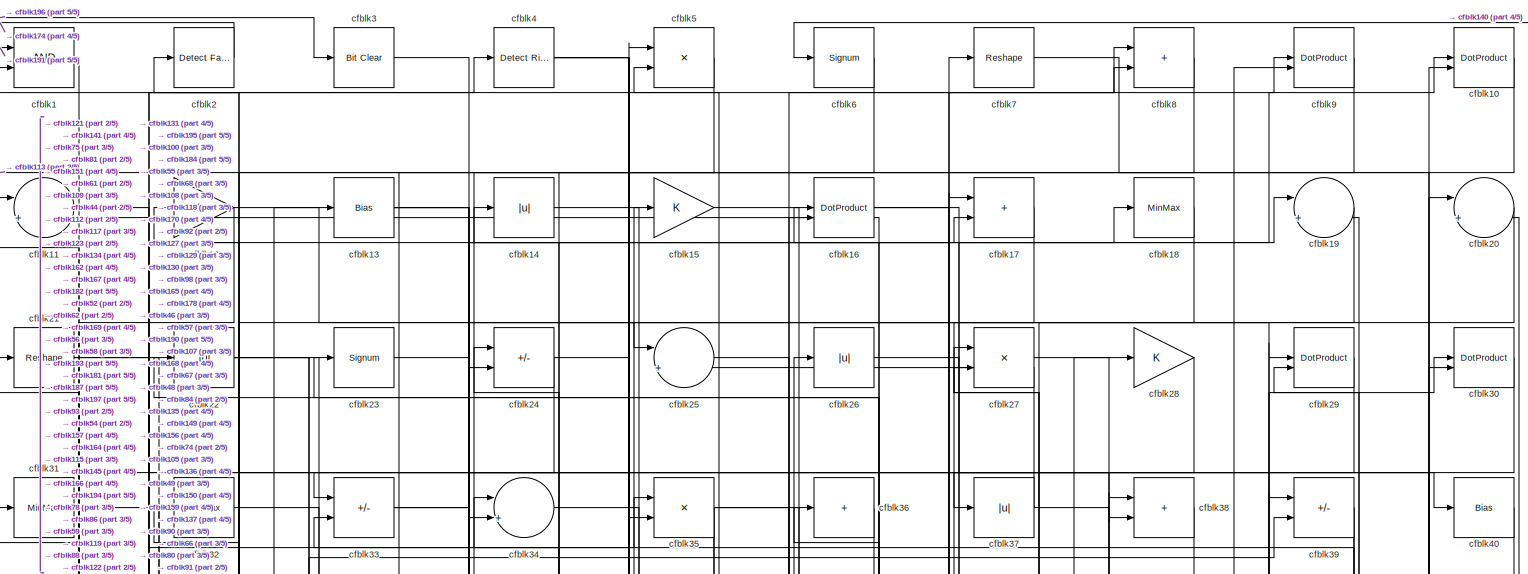
[diagram: root canvas - part 1/5, full width, top band]
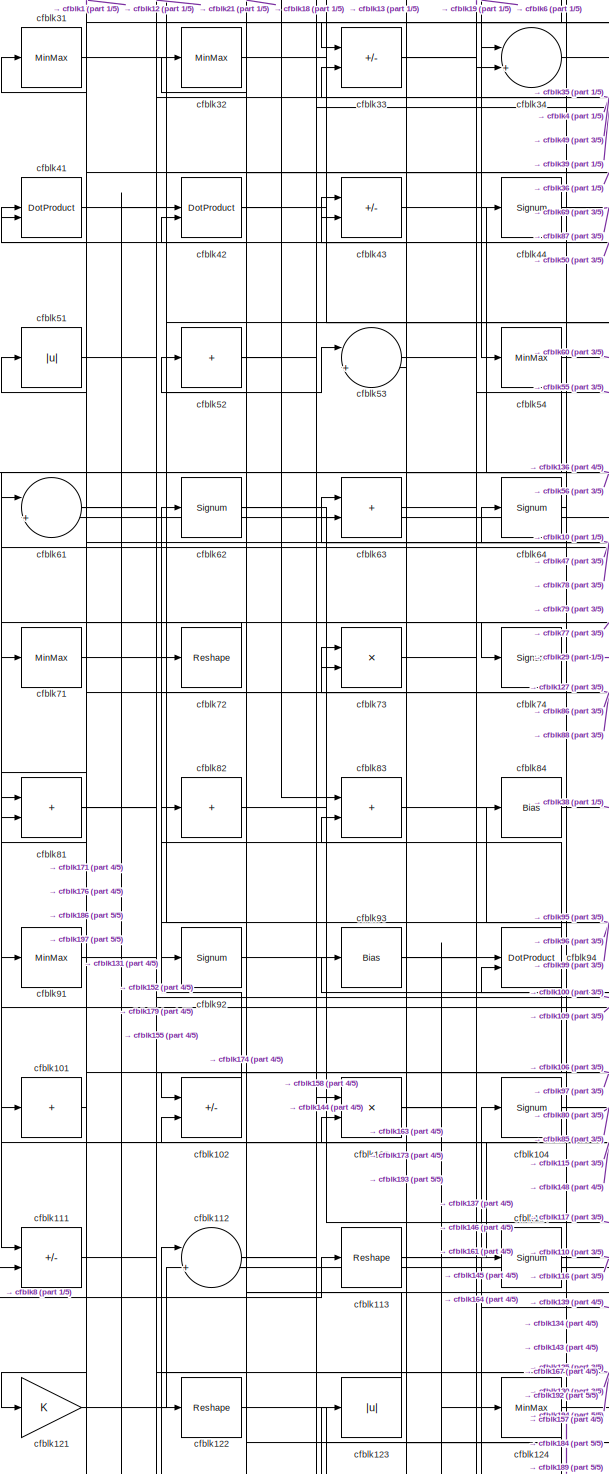
[diagram: root canvas - part 2/5, middle left region]
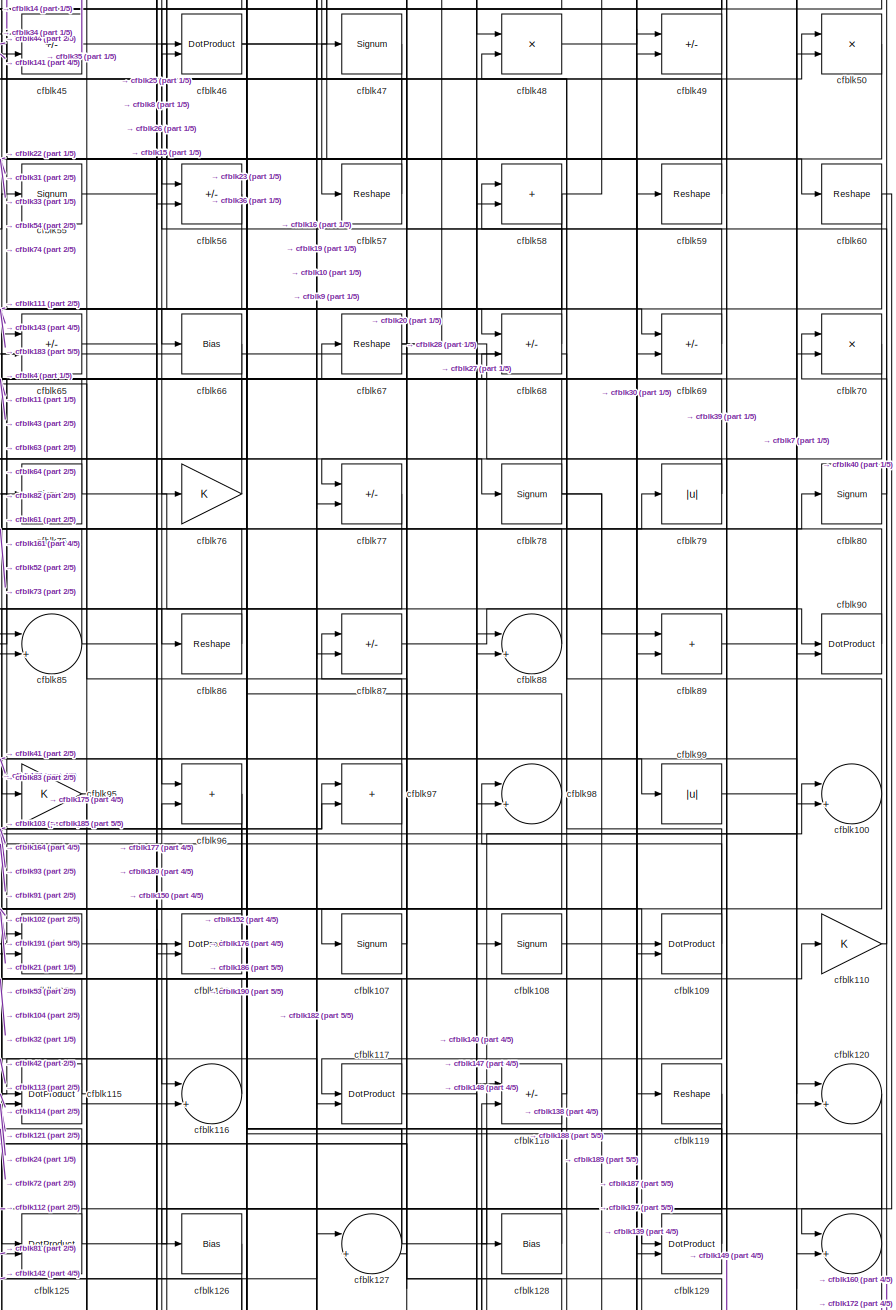
[diagram: root canvas - part 3/5, middle right region]
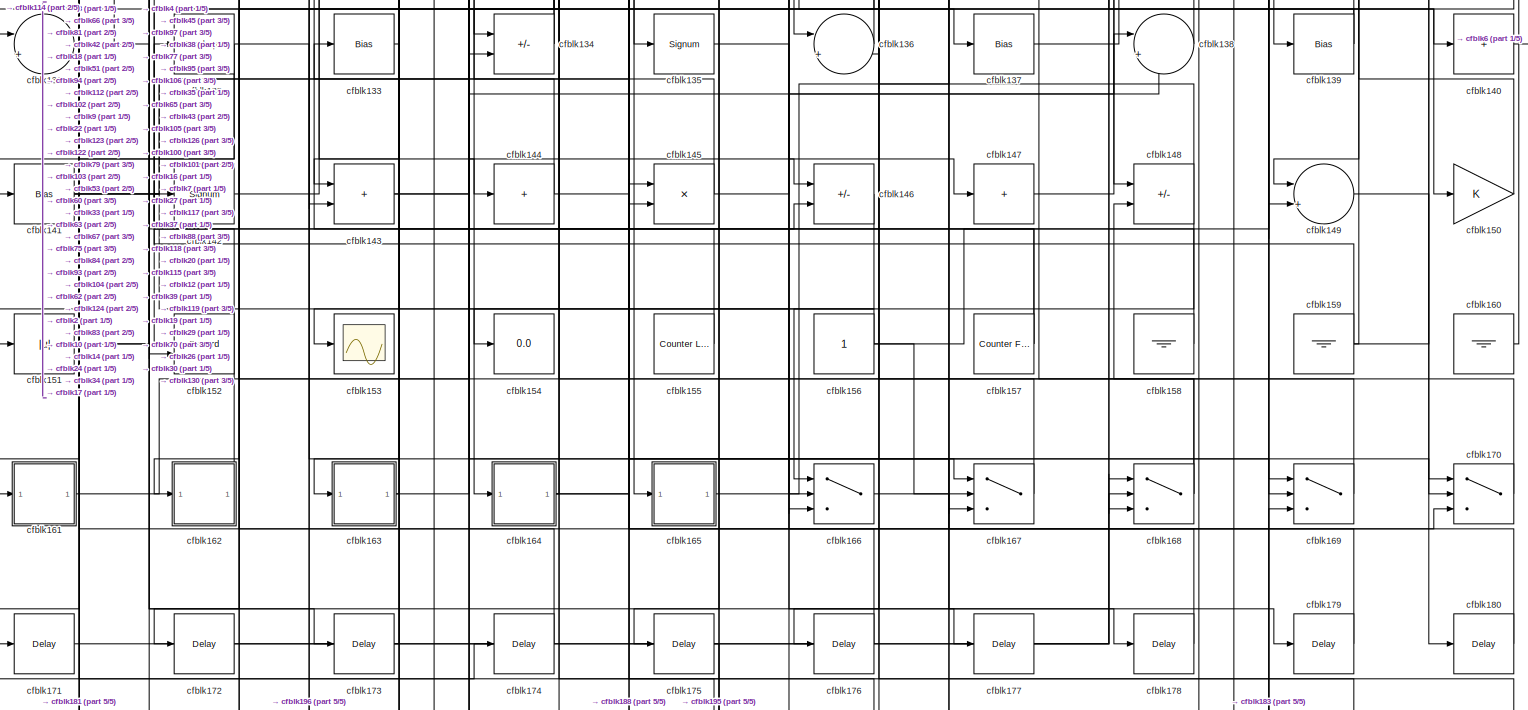
[diagram: root canvas - part 4/5, full width, bottom band]
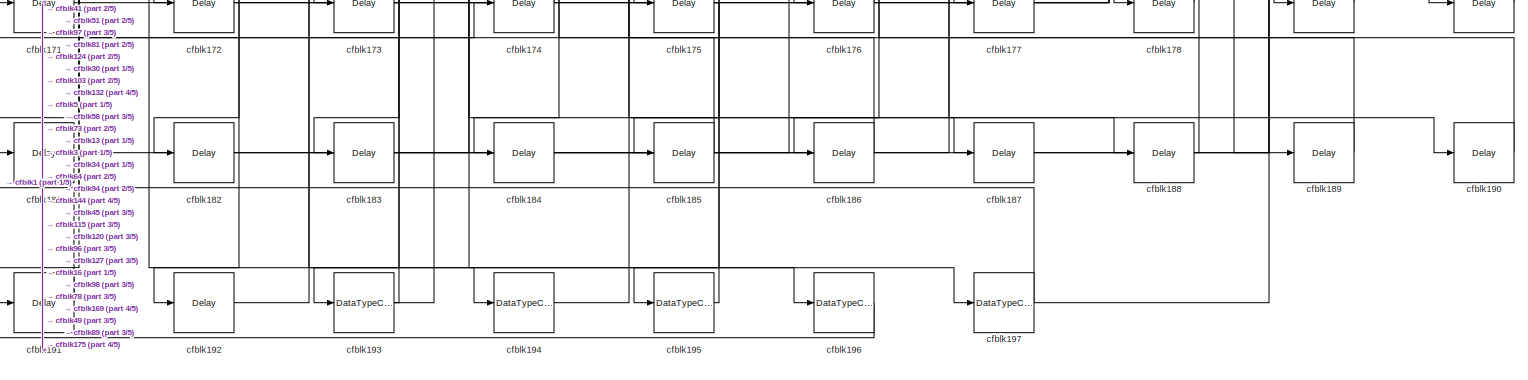
[diagram: root canvas - part 5/5, full width, bottom band]
MODEL slx_6b3263de21a6
KIND model
CONFIG AbsTol = auto
CONFIG EnableMultiTasking = off
CONFIG FixedStep = auto
CONFIG MaxStep = auto
CONFIG MinStep = auto
CONFIG RelTol = 1e-3
CONFIG SampleTimeConstraint = Unconstrained
CONFIG SolverName = VariableStepAuto
CONFIG StartTime = 0.0
CONFIG StopTime = 10.0
BLOCK [Logic] cfblk1
  AllPortsSameDT = off
  OutDataTypeStr = boolean
BLOCK [DotProduct] cfblk10
  OutDataTypeStr = Inherit: Inherit via internal rule
BLOCK [Sum] cfblk100
  Inputs = |++
BLOCK [Sum] cfblk101
  IconShape = rectangular
  Inputs = +
BLOCK [Sum] cfblk102
  IconShape = rectangular
  Inputs = +-
BLOCK [Product] cfblk103
  Inputs = */
  RndMeth = Zero
  SaturateOnIntegerOverflow = on
BLOCK [Signum] cfblk104
BLOCK [Sum] cfblk105
  IconShape = rectangular
  Inputs = +-
BLOCK [DotProduct] cfblk106
  OutDataTypeStr = Inherit: Inherit via internal rule
BLOCK [Signum] cfblk107
BLOCK [Signum] cfblk108
BLOCK [DotProduct] cfblk109
  OutDataTypeStr = Inherit: Inherit via internal rule
BLOCK [Sum] cfblk11
  Inputs = |++
BLOCK [Gain] cfblk110
BLOCK [Sum] cfblk111
  IconShape = rectangular
  Inputs = +-
BLOCK [Sum] cfblk112
  Inputs = |++
BLOCK [Reshape] cfblk113
BLOCK [Signum] cfblk114
BLOCK [DotProduct] cfblk115
  OutDataTypeStr = Inherit: Inherit via internal rule
BLOCK [Sum] cfblk116
  Inputs = |++
BLOCK [DotProduct] cfblk117
  OutDataTypeStr = Inherit: Inherit via internal rule
BLOCK [Sum] cfblk118
  IconShape = rectangular
  Inputs = +-
BLOCK [Reshape] cfblk119
BLOCK [Gain] cfblk12
BLOCK [Sum] cfblk120
  Inputs = |++
BLOCK [Gain] cfblk121
BLOCK [Reshape] cfblk122
BLOCK [Abs] cfblk123
  SaturateOnIntegerOverflow = off
BLOCK [MinMax] cfblk124
BLOCK [DotProduct] cfblk125
  OutDataTypeStr = Inherit: Inherit via internal rule
BLOCK [Bias] cfblk126
  Bias = 0.0
  SaturateOnIntegerOverflow = off
BLOCK [Sum] cfblk127
  Inputs = |++
BLOCK [Bias] cfblk128
  Bias = 0.0
  SaturateOnIntegerOverflow = off
BLOCK [DotProduct] cfblk129
  OutDataTypeStr = Inherit: Inherit via internal rule
BLOCK [Bias] cfblk13
  Bias = 0.0
  SaturateOnIntegerOverflow = off
BLOCK [Sum] cfblk130
  Inputs = |++
BLOCK [Sum] cfblk131
  Inputs = |++
BLOCK [Reshape] cfblk132
BLOCK [Bias] cfblk133
  Bias = 0.0
  SaturateOnIntegerOverflow = off
BLOCK [Sum] cfblk134
  IconShape = rectangular
  Inputs = +-
BLOCK [Signum] cfblk135
BLOCK [Sum] cfblk136
  Inputs = |++
BLOCK [Bias] cfblk137
  Bias = 0.0
  SaturateOnIntegerOverflow = off
BLOCK [Sum] cfblk138
  Inputs = |++
BLOCK [Bias] cfblk139
  Bias = 0.0
  SaturateOnIntegerOverflow = off
BLOCK [Abs] cfblk14
  SaturateOnIntegerOverflow = off
BLOCK [Sum] cfblk140
  IconShape = rectangular
  Inputs = +
BLOCK [Bias] cfblk141
  Bias = 0.0
  SaturateOnIntegerOverflow = off
BLOCK [Signum] cfblk142
BLOCK [Sum] cfblk143
  IconShape = rectangular
BLOCK [Sum] cfblk144
  IconShape = rectangular
  Inputs = +
BLOCK [Product] cfblk145
  Inputs = */
  RndMeth = Zero
  SaturateOnIntegerOverflow = on
BLOCK [Sum] cfblk146
  IconShape = rectangular
  Inputs = +-
BLOCK [Sum] cfblk147
  IconShape = rectangular
  Inputs = +
BLOCK [Sum] cfblk148
  IconShape = rectangular
  Inputs = +-
BLOCK [Sum] cfblk149
  Inputs = |++
BLOCK [Gain] cfblk15
BLOCK [Gain] cfblk150
BLOCK [Abs] cfblk151
  SaturateOnIntegerOverflow = off
BLOCK [Record] cfblk152
  CompatibilityTag = XY
  FileSettingsInternal = {"entries":[{"content":{"excelSettings":{"content":{},"type":"Streamout.ExcelSettings"}},"type":"Streamout.FileSettingStorage","uuid":""}],"packageUris":["http:\/\/schema.mathworks.com\/mf0\/streamout_blocks\/R2020a"],"version":"1.0"}
  Layout = [1 1]
  SignalsInternal = {"entries":[{"content":{"signals":[{"content":{"blockPath":[],"dimensions":[1],"domain":"","lineColor":"#a2142f","plots":[1],"port":1,"sid":[""],"signalID":3784,"signalName":"cfblk126"},"type":"RecordBlkView.Signal","uuid":""},{"content":{"blockPath":[],"dimensions":[1],"domain":"","lineColor":"#139fff","plots":[1],"port":2,"sid":[""],"signalID":3788,"signalName":"cfblk94"},"type":"RecordBlkView.S...<+163ch>
  VisualizationBindings = {"xyplotplugin":{"info":[{"series":[{"bindingParametersList":[{"parameter":"X-Axis","signalID":3784,"signalName":"cfblk126"},{"parameter":"Y-Axis","signalID":3788,"signalName":"cfblk94"}],"seriesID":60318}],"subplotID":1}]}}
  st = -1
BLOCK [Scope] cfblk153
  Floating = off
  NumInputPorts = 1
  ScopeSpecificationString = Simulink.scopes.TimeScopeBlockCfg('CurrentConfiguration', extmgr.ConfigurationSet(extmgr.Configuration('Core','General UI',true),extmgr.Configuration('Core','Source UI',true),extmgr.Configuration('Sources','WiredSimulink',true,'DataLoggingVariableName','ScopeData2','DataLoggingSaveFormat','Array','DataLoggingLimitDataPoints',true,'DataLoggingDecimation','1'),extmgr.Configuration('Visuals','Time Do...<+868ch>
BLOCK [Display] cfblk154
  Decimation = 1
BLOCK [Reference] cfblk155  REF=hdlsllib/Sources/Counter
Limited
  SourceBlock = hdlsllib/Sources/Counter\nLimited
  SourceType = Counter Limited
BLOCK [Constant] cfblk156
  SampleTime = -1
BLOCK [Reference] cfblk157  REF=hdlsllib/Sources/Counter
Free-Running
  SourceBlock = hdlsllib/Sources/Counter\nFree-Running
  SourceType = Counter Free-Running
BLOCK [Ground] cfblk158
BLOCK [Ground] cfblk159
BLOCK [DotProduct] cfblk16
  OutDataTypeStr = Inherit: Inherit via internal rule
BLOCK [Ground] cfblk160
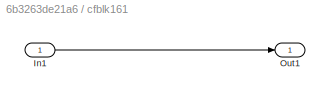
BLOCK [SubSystem] cfblk161
  LibrarySourceBlock = hdlsllib/Ports &\nSubsystems/Subsystem
BLOCK [Inport] cfblk161/In1
BLOCK [Outport] cfblk161/Out1
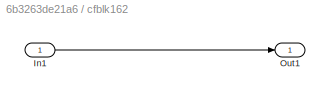
BLOCK [SubSystem] cfblk162
  LibrarySourceBlock = hdlsllib/Ports &\nSubsystems/Subsystem
BLOCK [Inport] cfblk162/In1
BLOCK [Outport] cfblk162/Out1
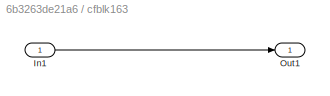
BLOCK [SubSystem] cfblk163
  LibrarySourceBlock = hdlsllib/Ports &\nSubsystems/Subsystem
BLOCK [Inport] cfblk163/In1
BLOCK [Outport] cfblk163/Out1
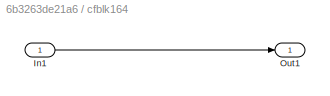
BLOCK [SubSystem] cfblk164
  LibrarySourceBlock = hdlsllib/Ports &\nSubsystems/Subsystem
BLOCK [Inport] cfblk164/In1
BLOCK [Outport] cfblk164/Out1
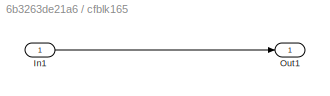
BLOCK [SubSystem] cfblk165
  LibrarySourceBlock = hdlsllib/Ports &\nSubsystems/Subsystem
BLOCK [Inport] cfblk165/In1
BLOCK [Outport] cfblk165/Out1
BLOCK [Switch] cfblk166
  InputSameDT = off
  SaturateOnIntegerOverflow = off
BLOCK [Switch] cfblk167
  InputSameDT = off
  SaturateOnIntegerOverflow = off
BLOCK [Switch] cfblk168
  InputSameDT = off
  SaturateOnIntegerOverflow = off
BLOCK [Switch] cfblk169
  InputSameDT = off
  SaturateOnIntegerOverflow = off
BLOCK [Sum] cfblk17
  IconShape = rectangular
BLOCK [Switch] cfblk170
  InputSameDT = off
  SaturateOnIntegerOverflow = off
BLOCK [Delay] cfblk171
  InputPortMap = u0
  SampleTime = 1
BLOCK [Delay] cfblk172
  InputPortMap = u0
  SampleTime = 1
BLOCK [Delay] cfblk173
  InputPortMap = u0
  SampleTime = 1
BLOCK [Delay] cfblk174
  InputPortMap = u0
  SampleTime = 1
BLOCK [Delay] cfblk175
  InputPortMap = u0
  SampleTime = 1
BLOCK [Delay] cfblk176
  InputPortMap = u0
  SampleTime = 1
BLOCK [Delay] cfblk177
  InputPortMap = u0
  SampleTime = 1
BLOCK [Delay] cfblk178
  InputPortMap = u0
  SampleTime = 1
BLOCK [Delay] cfblk179
  InputPortMap = u0
  SampleTime = 1
BLOCK [MinMax] cfblk18
BLOCK [Delay] cfblk180
  InputPortMap = u0
  SampleTime = 1
BLOCK [Delay] cfblk181
  InputPortMap = u0
  SampleTime = 1
BLOCK [Delay] cfblk182
  InputPortMap = u0
  SampleTime = 1
BLOCK [Delay] cfblk183
  InputPortMap = u0
  SampleTime = 1
BLOCK [Delay] cfblk184
  InputPortMap = u0
  SampleTime = 1
BLOCK [Delay] cfblk185
  InputPortMap = u0
  SampleTime = 1
BLOCK [Delay] cfblk186
  InputPortMap = u0
  SampleTime = 1
BLOCK [Delay] cfblk187
  InputPortMap = u0
  SampleTime = 1
BLOCK [Delay] cfblk188
  InputPortMap = u0
  SampleTime = 1
BLOCK [Delay] cfblk189
  InputPortMap = u0
  SampleTime = 1
BLOCK [Sum] cfblk19
  Inputs = |++
BLOCK [Delay] cfblk190
  InputPortMap = u0
  SampleTime = 1
BLOCK [Delay] cfblk191
  InputPortMap = u0
  SampleTime = 1
BLOCK [Delay] cfblk192
  InputPortMap = u0
  SampleTime = 1
BLOCK [DataTypeConversion] cfblk193
  RndMeth = Floor
  SaturateOnIntegerOverflow = off
BLOCK [DataTypeConversion] cfblk194
  OutDataTypeStr = uint8
  RndMeth = Floor
  SaturateOnIntegerOverflow = off
BLOCK [DataTypeConversion] cfblk195
  OutDataTypeStr = uint8
  RndMeth = Floor
  SaturateOnIntegerOverflow = off
BLOCK [DataTypeConversion] cfblk196
  OutDataTypeStr = boolean
  RndMeth = Floor
  SaturateOnIntegerOverflow = off
BLOCK [DataTypeConversion] cfblk197
  RndMeth = Floor
  SaturateOnIntegerOverflow = off
BLOCK [Reference] cfblk2  REF=hdlsllib/Logic and Bit
Operations/Detect Fall
Nonpositive
  SourceBlock = hdlsllib/Logic and Bit\nOperations/Detect Fall\nNonpositive
  SourceType = Detect Fall Nonpositive
BLOCK [Sum] cfblk20
  Inputs = |++
BLOCK [Reshape] cfblk21
BLOCK [Abs] cfblk22
  SaturateOnIntegerOverflow = off
BLOCK [Signum] cfblk23
BLOCK [Sum] cfblk24
  IconShape = rectangular
  Inputs = +-
BLOCK [Sum] cfblk25
  Inputs = |++
BLOCK [Abs] cfblk26
  SaturateOnIntegerOverflow = off
BLOCK [Product] cfblk27
  Inputs = */
  RndMeth = Zero
  SaturateOnIntegerOverflow = on
BLOCK [Gain] cfblk28
BLOCK [DotProduct] cfblk29
  OutDataTypeStr = Inherit: Inherit via internal rule
BLOCK [Reference] cfblk3  REF=simulink/Logic and Bit
Operations/Bit Clear
  LibrarySourceBlock = hdlsllib/Logic and Bit\nOperations/Bit Clear
  SourceBlock = simulink/Logic and Bit\nOperations/Bit Clear
  SourceType = Bit Clear
BLOCK [DotProduct] cfblk30
  OutDataTypeStr = Inherit: Inherit via internal rule
BLOCK [MinMax] cfblk31
BLOCK [MinMax] cfblk32
BLOCK [Sum] cfblk33
  IconShape = rectangular
  Inputs = +-
BLOCK [Sum] cfblk34
  Inputs = |++
BLOCK [Product] cfblk35
  Inputs = */
  RndMeth = Zero
  SaturateOnIntegerOverflow = on
BLOCK [Sum] cfblk36
  IconShape = rectangular
  Inputs = +
BLOCK [Abs] cfblk37
  SaturateOnIntegerOverflow = off
BLOCK [Sum] cfblk38
  IconShape = rectangular
BLOCK [Sum] cfblk39
  IconShape = rectangular
  Inputs = +-
BLOCK [Reference] cfblk4  REF=hdlsllib/Logic and Bit
Operations/Detect Rise
Nonnegative
  SourceBlock = hdlsllib/Logic and Bit\nOperations/Detect Rise\nNonnegative
  SourceType = Detect Rise Nonnegative
BLOCK [Bias] cfblk40
  Bias = 0.0
  SaturateOnIntegerOverflow = off
BLOCK [DotProduct] cfblk41
  OutDataTypeStr = Inherit: Inherit via internal rule
BLOCK [DotProduct] cfblk42
  OutDataTypeStr = Inherit: Inherit via internal rule
BLOCK [Sum] cfblk43
  IconShape = rectangular
  Inputs = +-
BLOCK [Signum] cfblk44
BLOCK [Sum] cfblk45
  IconShape = rectangular
  Inputs = +-
BLOCK [DotProduct] cfblk46
  OutDataTypeStr = Inherit: Inherit via internal rule
BLOCK [Signum] cfblk47
BLOCK [Product] cfblk48
  Inputs = */
  RndMeth = Zero
  SaturateOnIntegerOverflow = on
BLOCK [Sum] cfblk49
  IconShape = rectangular
  Inputs = +-
BLOCK [Product] cfblk5
  Inputs = */
  RndMeth = Zero
  SaturateOnIntegerOverflow = on
BLOCK [Product] cfblk50
  Inputs = */
  RndMeth = Zero
  SaturateOnIntegerOverflow = on
BLOCK [Abs] cfblk51
  SaturateOnIntegerOverflow = off
BLOCK [Sum] cfblk52
  IconShape = rectangular
  Inputs = +
BLOCK [Sum] cfblk53
  Inputs = |++
BLOCK [MinMax] cfblk54
BLOCK [Signum] cfblk55
BLOCK [Sum] cfblk56
  IconShape = rectangular
  Inputs = +-
BLOCK [Reshape] cfblk57
BLOCK [Sum] cfblk58
  IconShape = rectangular
BLOCK [Reshape] cfblk59
BLOCK [Signum] cfblk6
BLOCK [Reshape] cfblk60
BLOCK [Sum] cfblk61
  Inputs = |++
BLOCK [Signum] cfblk62
BLOCK [Sum] cfblk63
  IconShape = rectangular
BLOCK [Signum] cfblk64
BLOCK [Sum] cfblk65
  IconShape = rectangular
  Inputs = +-
BLOCK [Bias] cfblk66
  Bias = 0.0
  SaturateOnIntegerOverflow = off
BLOCK [Reshape] cfblk67
BLOCK [Sum] cfblk68
  IconShape = rectangular
  Inputs = +-
BLOCK [Sum] cfblk69
  IconShape = rectangular
  Inputs = +-
BLOCK [Reshape] cfblk7
BLOCK [Product] cfblk70
  Inputs = */
  RndMeth = Zero
  SaturateOnIntegerOverflow = on
BLOCK [MinMax] cfblk71
BLOCK [Reshape] cfblk72
BLOCK [Product] cfblk73
  Inputs = */
  RndMeth = Zero
  SaturateOnIntegerOverflow = on
BLOCK [Signum] cfblk74
BLOCK [Signum] cfblk75
BLOCK [Gain] cfblk76
BLOCK [Sum] cfblk77
  IconShape = rectangular
  Inputs = +-
BLOCK [Signum] cfblk78
BLOCK [Abs] cfblk79
  SaturateOnIntegerOverflow = off
BLOCK [Sum] cfblk8
  IconShape = rectangular
BLOCK [Signum] cfblk80
BLOCK [Sum] cfblk81
  IconShape = rectangular
BLOCK [Sum] cfblk82
  IconShape = rectangular
  Inputs = +
BLOCK [Sum] cfblk83
  IconShape = rectangular
BLOCK [Bias] cfblk84
  Bias = 0.0
  SaturateOnIntegerOverflow = off
BLOCK [Sum] cfblk85
  Inputs = |++
BLOCK [Reshape] cfblk86
BLOCK [Sum] cfblk87
  IconShape = rectangular
  Inputs = +-
BLOCK [Sum] cfblk88
  Inputs = |++
BLOCK [Sum] cfblk89
  IconShape = rectangular
BLOCK [DotProduct] cfblk9
  OutDataTypeStr = Inherit: Inherit via internal rule
BLOCK [DotProduct] cfblk90
  OutDataTypeStr = Inherit: Inherit via internal rule
BLOCK [MinMax] cfblk91
BLOCK [Signum] cfblk92
BLOCK [Bias] cfblk93
  Bias = 0.0
  SaturateOnIntegerOverflow = off
BLOCK [DotProduct] cfblk94
  OutDataTypeStr = Inherit: Inherit via internal rule
BLOCK [Gain] cfblk95
BLOCK [Sum] cfblk96
  IconShape = rectangular
BLOCK [Sum] cfblk97
  IconShape = rectangular
BLOCK [Sum] cfblk98
  Inputs = |++
BLOCK [Abs] cfblk99
  SaturateOnIntegerOverflow = off
NET cfblk100:1 -> cfblk176:1, cfblk46:2
LINE cfblk101:1 -> cfblk171:1
LINE cfblk102:1 -> cfblk82:1
NET cfblk103:1 -> cfblk124:1, cfblk55:1, cfblk97:1
NET cfblk104:1 -> cfblk80:1, cfblk85:2
LINE cfblk105:1 -> cfblk150:1
NET cfblk106:1 -> cfblk102:1, cfblk93:1
LINE cfblk107:1 -> cfblk27:1
LINE cfblk108:1 -> cfblk129:1
NET cfblk109:1 -> cfblk117:1, cfblk61:2, cfblk91:1
LINE cfblk10:1 -> cfblk134:1
LINE cfblk110:1 -> cfblk58:1
LINE cfblk111:1 -> cfblk100:1
NET cfblk112:1 -> cfblk130:2, cfblk50:1
NET cfblk113:1 -> cfblk117:2, cfblk85:1
NET cfblk114:1 -> cfblk110:1, cfblk116:1
NET cfblk115:1 -> cfblk185:1, cfblk42:2
LINE cfblk116:1 -> cfblk31:1
NET cfblk117:1 -> cfblk140:1, cfblk32:1
NET cfblk118:1 -> cfblk148:1, cfblk68:2
NET cfblk119:1 -> cfblk126:1, cfblk139:1
LINE cfblk11:1 -> cfblk40:1
LINE cfblk120:1 -> cfblk186:1
LINE cfblk121:1 -> cfblk116:2
LINE cfblk122:1 -> cfblk144:1
LINE cfblk123:1 -> cfblk1:2
NET cfblk124:1 -> cfblk143:2, cfblk167:3, cfblk192:1
NET cfblk125:1 -> cfblk59:1, cfblk72:1
LINE cfblk126:1 -> cfblk152:1
NET cfblk127:1 -> cfblk22:1, cfblk69:2, cfblk73:1
LINE cfblk128:1 -> cfblk46:1
NET cfblk129:1 -> cfblk23:1, cfblk87:1
NET cfblk12:1 -> cfblk121:1, cfblk149:2
NET cfblk130:1 -> cfblk11:2, cfblk172:1
NET cfblk131:1 -> cfblk173:1, cfblk42:1
NET cfblk132:1 -> cfblk151:1, cfblk181:1, cfblk196:1
LINE cfblk133:1 -> cfblk163:1
NET cfblk134:1 -> cfblk2:1, cfblk83:2
LINE cfblk135:1 -> cfblk147:1
LINE cfblk136:1 -> cfblk63:1
LINE cfblk137:1 -> cfblk20:1
LINE cfblk138:1 -> cfblk115:1
NET cfblk139:1 -> cfblk114:1, cfblk131:1
NET cfblk13:1 -> cfblk187:1, cfblk25:1, cfblk35:2
LINE cfblk140:1 -> cfblk6:1
NET cfblk141:1 -> cfblk166:2, cfblk24:2, cfblk45:2
LINE cfblk142:1 -> cfblk79:1
NET cfblk143:1 -> cfblk67:1, cfblk75:1
NET cfblk144:1 -> cfblk133:1, cfblk188:1
NET cfblk145:1 -> cfblk104:1, cfblk138:2
LINE cfblk146:1 -> cfblk166:1
LINE cfblk147:1 -> cfblk118:2
NET cfblk148:1 -> cfblk101:1, cfblk154:1
LINE cfblk149:1 -> cfblk180:1
LINE cfblk14:1 -> cfblk88:2
LINE cfblk150:1 -> cfblk19:2
NET cfblk151:1 -> cfblk146:2, cfblk18:1
LINE cfblk155:1 -> cfblk112:1
NET cfblk156:1 -> cfblk153:1, cfblk167:2, cfblk39:1
NET cfblk157:1 -> cfblk103:2, cfblk24:1
LINE cfblk158:1 -> cfblk123:1
NET cfblk159:1 -> cfblk142:1, cfblk29:2, cfblk30:2
LINE cfblk15:1 -> cfblk118:1
LINE cfblk160:1 -> cfblk70:1
LINE cfblk161/In1:1 -> cfblk161/Out1:1
LINE cfblk161:1 -> cfblk84:1
LINE cfblk162/In1:1 -> cfblk162/Out1:1
LINE cfblk162:1 -> cfblk132:1
LINE cfblk163/In1:1 -> cfblk163/Out1:1
NET cfblk163:1 -> cfblk138:1, cfblk43:2
LINE cfblk164/In1:1 -> cfblk164/Out1:1
NET cfblk164:1 -> cfblk14:1, cfblk170:3, cfblk97:2
LINE cfblk165/In1:1 -> cfblk165/Out1:1
LINE cfblk165:1 -> cfblk7:1
LINE cfblk166:1 -> cfblk178:1
LINE cfblk167:1 -> cfblk12:1
NET cfblk168:1 -> cfblk16:1, cfblk27:2
LINE cfblk169:1 -> cfblk34:1
NET cfblk16:1 -> cfblk190:1, cfblk98:2
LINE cfblk170:1 -> cfblk148:2
LINE cfblk171:1 -> cfblk168:1
LINE cfblk172:1 -> cfblk168:2
LINE cfblk173:1 -> cfblk53:2
LINE cfblk174:1 -> cfblk102:2
LINE cfblk175:1 -> cfblk195:1
LINE cfblk176:1 -> cfblk81:2
LINE cfblk177:1 -> cfblk88:1
LINE cfblk178:1 -> cfblk17:1
LINE cfblk179:1 -> cfblk145:1
LINE cfblk17:1 -> cfblk145:2
LINE cfblk180:1 -> cfblk106:1
LINE cfblk181:1 -> cfblk34:2
LINE cfblk182:1 -> cfblk127:1
LINE cfblk183:1 -> cfblk169:3
LINE cfblk184:1 -> cfblk16:2
LINE cfblk185:1 -> cfblk45:1
LINE cfblk186:1 -> cfblk41:2
LINE cfblk187:1 -> cfblk49:1
LINE cfblk188:1 -> cfblk98:1
LINE cfblk189:1 -> cfblk94:2
LINE cfblk18:1 -> cfblk112:2
LINE cfblk190:1 -> cfblk96:2
LINE cfblk191:1 -> cfblk1:1
LINE cfblk192:1 -> cfblk103:1
NET cfblk193:1 -> cfblk73:2, cfblk94:1
LINE cfblk194:1 -> cfblk5:1
LINE cfblk195:1 -> cfblk5:2
LINE cfblk196:1 -> cfblk3:1
NET cfblk197:1 -> cfblk51:1, cfblk89:2
LINE cfblk19:1 -> cfblk57:1
LINE cfblk1:1 -> cfblk81:1
LINE cfblk20:1 -> cfblk127:2
NET cfblk21:1 -> cfblk109:2, cfblk44:1
NET cfblk22:1 -> cfblk169:1, cfblk169:2, cfblk58:2
LINE cfblk23:1 -> cfblk17:2
NET cfblk24:1 -> cfblk115:2, cfblk33:1
LINE cfblk25:1 -> cfblk100:2
LINE cfblk26:1 -> cfblk170:1
LINE cfblk27:1 -> cfblk48:1
LINE cfblk28:1 -> cfblk141:1
LINE cfblk29:1 -> cfblk37:1
LINE cfblk2:1 -> cfblk174:1
LINE cfblk30:1 -> cfblk182:1
LINE cfblk31:1 -> cfblk56:1
LINE cfblk32:1 -> cfblk56:2
NET cfblk33:1 -> cfblk167:1, cfblk38:2
LINE cfblk34:1 -> cfblk119:1
NET cfblk35:1 -> cfblk108:1, cfblk122:1, cfblk131:2, cfblk170:2
LINE cfblk36:1 -> cfblk92:1
NET cfblk37:1 -> cfblk168:3, cfblk25:2
LINE cfblk38:1 -> cfblk135:1
NET cfblk39:1 -> cfblk105:2, cfblk136:2
LINE cfblk3:1 -> cfblk197:1
LINE cfblk40:1 -> cfblk66:1
LINE cfblk41:1 -> cfblk96:1
NET cfblk42:1 -> cfblk134:2, cfblk83:1
LINE cfblk43:1 -> cfblk136:1
NET cfblk44:1 -> cfblk69:1, cfblk87:2
LINE cfblk45:1 -> cfblk129:2
NET cfblk46:1 -> cfblk10:1, cfblk9:1
LINE cfblk47:1 -> cfblk64:1
LINE cfblk48:1 -> cfblk30:1
NET cfblk49:1 -> cfblk33:2, cfblk74:1
NET cfblk4:1 -> cfblk166:3, cfblk68:1, cfblk78:1, cfblk86:1
LINE cfblk50:1 -> cfblk76:1
LINE cfblk51:1 -> cfblk179:1
NET cfblk52:1 -> cfblk13:1, cfblk77:2
LINE cfblk53:1 -> cfblk109:1
NET cfblk54:1 -> cfblk111:2, cfblk60:1
LINE cfblk55:1 -> cfblk8:2
LINE cfblk56:1 -> cfblk111:1
LINE cfblk57:1 -> cfblk21:1
NET cfblk58:1 -> cfblk107:1, cfblk183:1, cfblk9:2
LINE cfblk59:1 -> cfblk15:1
LINE cfblk5:1 -> cfblk193:1
NET cfblk60:1 -> cfblk130:1, cfblk143:1
NET cfblk61:1 -> cfblk35:1, cfblk4:1
NET cfblk62:1 -> cfblk164:1, cfblk39:2
LINE cfblk63:1 -> cfblk146:1
LINE cfblk64:1 -> cfblk184:1
LINE cfblk65:1 -> cfblk177:1
LINE cfblk66:1 -> cfblk161:1
NET cfblk67:1 -> cfblk120:2, cfblk28:1
LINE cfblk68:1 -> cfblk26:1
LINE cfblk69:1 -> cfblk47:1
LINE cfblk6:1 -> cfblk54:1
LINE cfblk70:1 -> cfblk149:1
LINE cfblk71:1 -> cfblk53:1
LINE cfblk72:1 -> cfblk71:1
LINE cfblk73:1 -> cfblk99:1
LINE cfblk74:1 -> cfblk29:1
NET cfblk75:1 -> cfblk11:1, cfblk120:1
LINE cfblk76:1 -> cfblk65:1
LINE cfblk77:1 -> cfblk165:1
NET cfblk78:1 -> cfblk189:1, cfblk43:1, cfblk89:1
NET cfblk79:1 -> cfblk63:2, cfblk77:1
LINE cfblk7:1 -> cfblk90:2
LINE cfblk80:1 -> cfblk20:2
NET cfblk81:1 -> cfblk125:2, cfblk194:1
LINE cfblk82:1 -> cfblk49:2
LINE cfblk83:1 -> cfblk95:1
LINE cfblk84:1 -> cfblk38:1
NET cfblk85:1 -> cfblk128:1, cfblk65:2
LINE cfblk86:1 -> cfblk52:1
LINE cfblk87:1 -> cfblk90:1
LINE cfblk88:1 -> cfblk41:1
LINE cfblk89:1 -> cfblk70:2
LINE cfblk8:1 -> cfblk113:1
LINE cfblk90:1 -> cfblk48:2
LINE cfblk91:1 -> cfblk8:1
LINE cfblk92:1 -> cfblk10:2
NET cfblk93:1 -> cfblk137:1, cfblk19:1
NET cfblk94:1 -> cfblk152:2, cfblk62:1
LINE cfblk95:1 -> cfblk175:1
NET cfblk96:1 -> cfblk105:1, cfblk106:2
NET cfblk97:1 -> cfblk191:1, cfblk61:1
NET cfblk98:1 -> cfblk125:1, cfblk36:1
LINE cfblk99:1 -> cfblk50:2
LINE cfblk9:1 -> cfblk162:1
note: NET lines group one-source signal fan-out (src -> all destinations, sorted); 1:1 wires keep LINE
